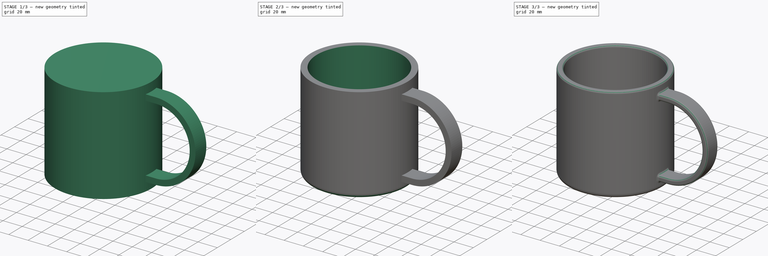
[diagram: build sequence overview — one tinted view per stage of 3, left to right]
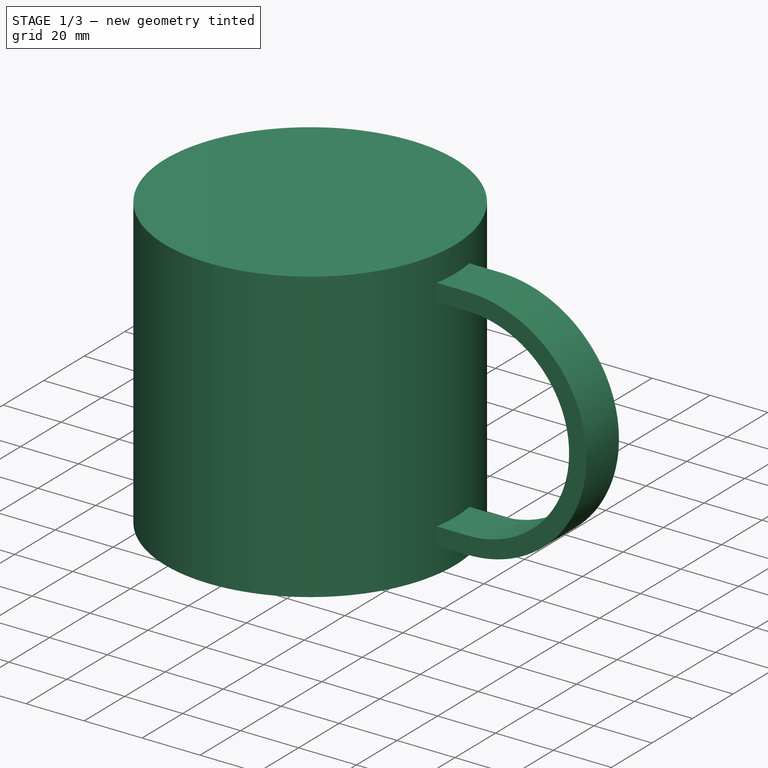
[diagram: stage 1 of 3 — iso view after this stage's code; geometry added in this stage tinted green]
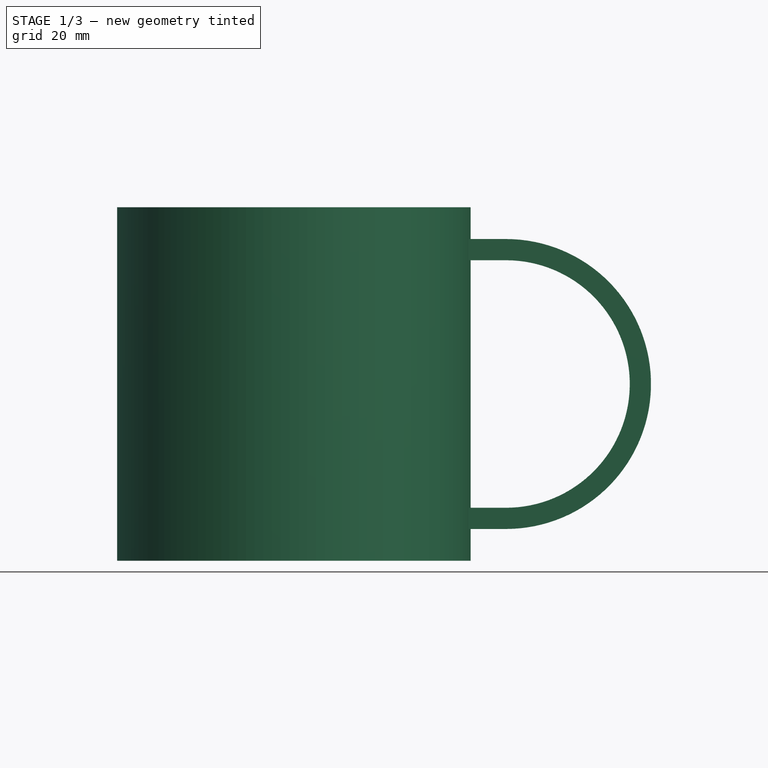
[diagram: stage 1 of 3 — front view after this stage's code; geometry added in this stage tinted green]
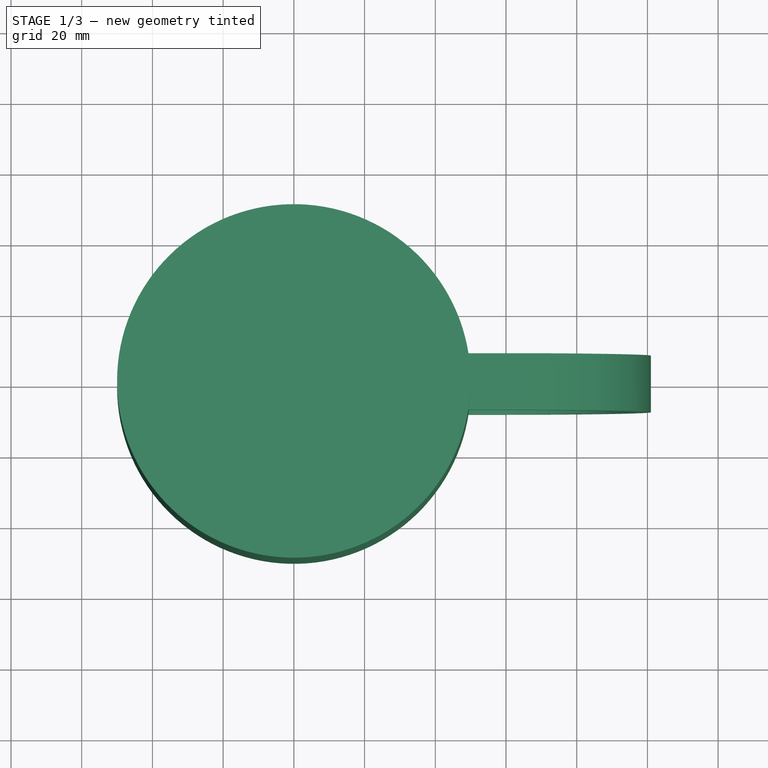
[diagram: stage 1 of 3 — top view after this stage's code; geometry added in this stage tinted green]
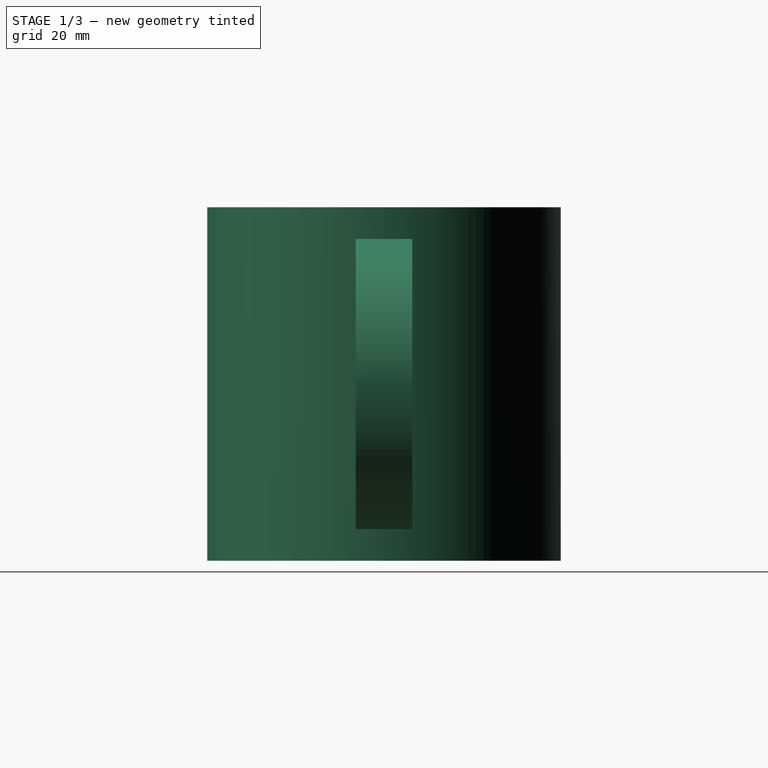
[diagram: stage 1 of 3 — right view after this stage's code; geometry added in this stage tinted green]
FCSTD DOCUMENT  (FreeCAD 2020.10.26R22739 +2702 (Git))
Label: CupSecondAttempt
License: All rights reserved
LicenseURL: http://en.wikipedia.org/wiki/All_rights_reserved
objects: Sketcher::SketchObject×3, PartDesign::Fillet×3, PartDesign::Pad×2, PartDesign::Plane×1, PartDesign::Pocket×1, PartDesign::Body×1
note: 23 computed .brp shape members not serialized (recipe doc carries the construction recipe); baked Part::Feature solids carry a one-line shape summary decoded from their .brp

FEATURE [Sketcher::SketchObject] Sketch  label="s_CupBody"
  MapMode = 5
  Support = -> [XY_Plane]
  sketch-geometry (1):
    g0: Circle CenterX=0 CenterY=0 CenterZ=0 NormalX=0 NormalY=0 NormalZ=1 AngleXU=0 Radius=50
  constraints (2):
    c: Coincident(g0,g-1)
    c: Diameter(g0) = 100  'dia'
FEATURE [PartDesign::Pad] Pad  label="CupBody"
  ClaimChildren = false
  Direction = (1,1,1)
  Length = 100
  Length2 = 100
  NewSolid = false
  Profile = -> Sketch
  Suppress = false
  Type = 0
FEATURE [Sketcher::SketchObject] Sketch001  label="s_Handle"
  MapMode = 5
  Placement = pos=(0,0,0) rot=(1,0,0;1.5708rad)
  Support = -> [XZ_Plane]
  expr: Constraints[18] = <<CupBody>>.Length * 0.5
  expr: Constraints[19] = <<s_CupBody>>.Constraints.dia * 0.6
  expr: Constraints[21] = <<CupBody>>.Length * 0.35
  expr: Constraints[22] = <<CupBody>>.Length * 0.41
  sketch-geometry (8):
    g0: LineSegment StartX=-2.5062e-12 StartY=91 StartZ=0 EndX=60 EndY=91 EndZ=0
    g1: ArcOfCircle CenterX=60 CenterY=50 CenterZ=0 NormalX=0 NormalY=0 NormalZ=1 AngleXU=0 Radius=41 StartAngle=4.71239 EndAngle=7.85398
    g2: LineSegment StartX=60 StartY=9 StartZ=0 EndX=1.02368e-10 EndY=9 EndZ=0
    g3: LineSegment StartX=1.02366e-10 StartY=9 StartZ=0 EndX=1.02366e-10 EndY=15 EndZ=0
    g4: LineSegment StartX=1.02366e-10 StartY=15 StartZ=0 EndX=60 EndY=15 EndZ=0
    g5: ArcOfCircle CenterX=60 CenterY=50 CenterZ=0 NormalX=0 NormalY=0 NormalZ=1 AngleXU=0 Radius=35 StartAngle=4.71239 EndAngle=7.85398
    g6: LineSegment StartX=60 StartY=85 StartZ=0 EndX=-2.5082e-12 EndY=85 EndZ=0
    g7: LineSegment StartX=-2.5062e-12 StartY=85 StartZ=0 EndX=-2.5062e-12 EndY=91 EndZ=0
  constraints (23):
    c: Horizontal(g0)
    c: Tangent(g0,g1) = 1.5708
    c: Tangent(g1,g2) = 1.5708
    c: Coincident(g2,g3)
    c: Vertical(g3)
    c: Coincident(g3,g4)
    c: Horizontal(g4)
    c: Tangent(g4,g5) = -1.5708
    c: Tangent(g5,g6) = -1.5708
    c: Coincident(g6,g7)
    c: Coincident(g7,g0)
    c: Vertical(g7)
    c: Horizontal(g2)
    c: Equal(g7,g3)
    c: Equal(g2,g4)
    c: Equal(g6,g0)
    c: Equal(g4,g6)
    c: Equal(g7,g3)
    c: DistanceY(g1) = 50
    c: DistanceX(g1) = 60
    c: PointOnObject(g6,g-2)
    c: Radius(g5) = 35
    c: Radius(g1) = 41
FEATURE [PartDesign::Pad] Pad001  label="Handle"
  BaseFeature = -> Pad
  ClaimChildren = false
  Direction = (1,1,1)
  Length = 16
  Length2 = 100
  Midplane = true
  NewSolid = false
  Profile = -> Sketch001
  Suppress = false
  Type = 0
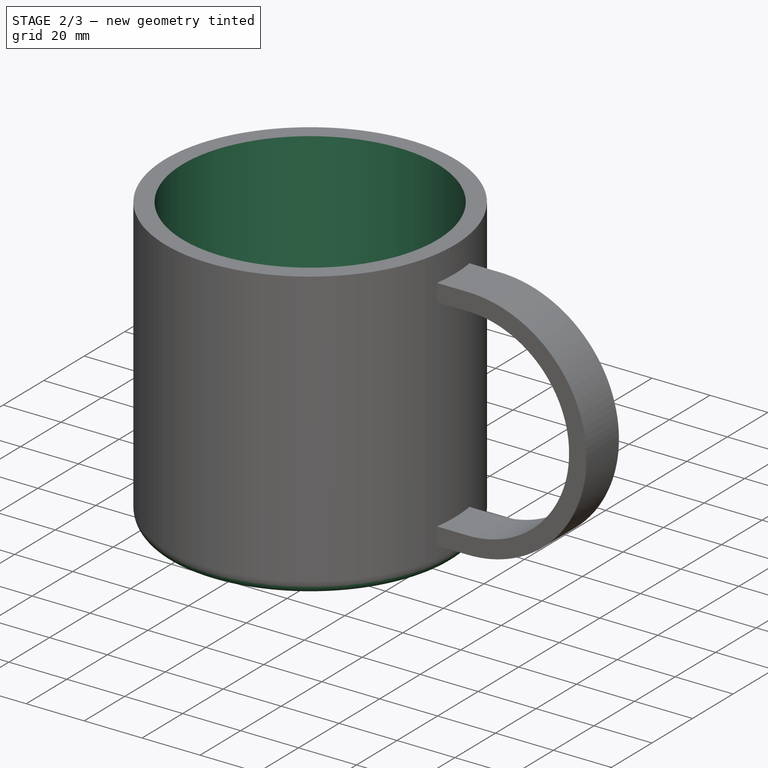
[diagram: stage 2 of 3 — iso view after this stage's code; geometry added in this stage tinted green]
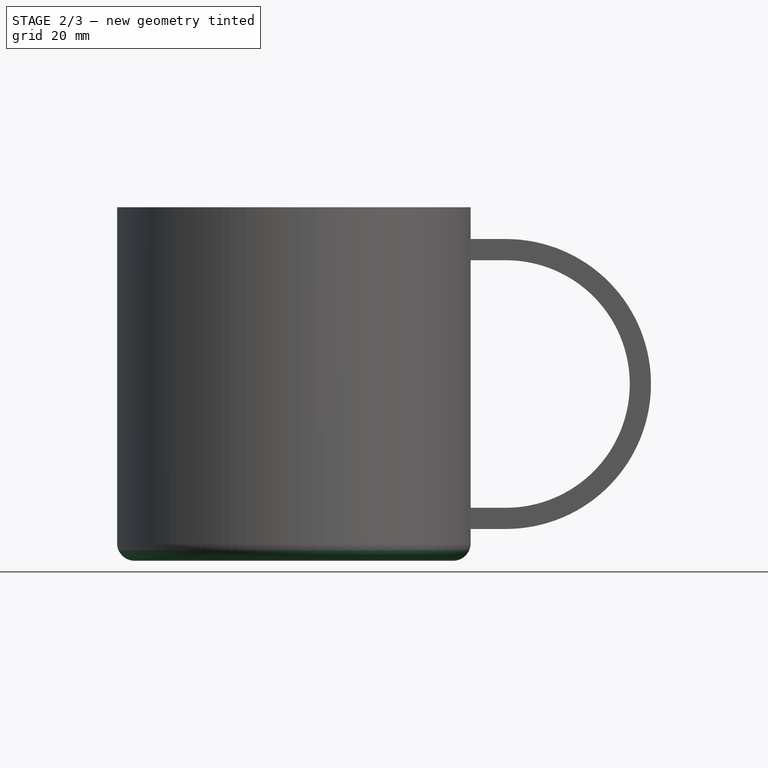
[diagram: stage 2 of 3 — front view after this stage's code; geometry added in this stage tinted green]
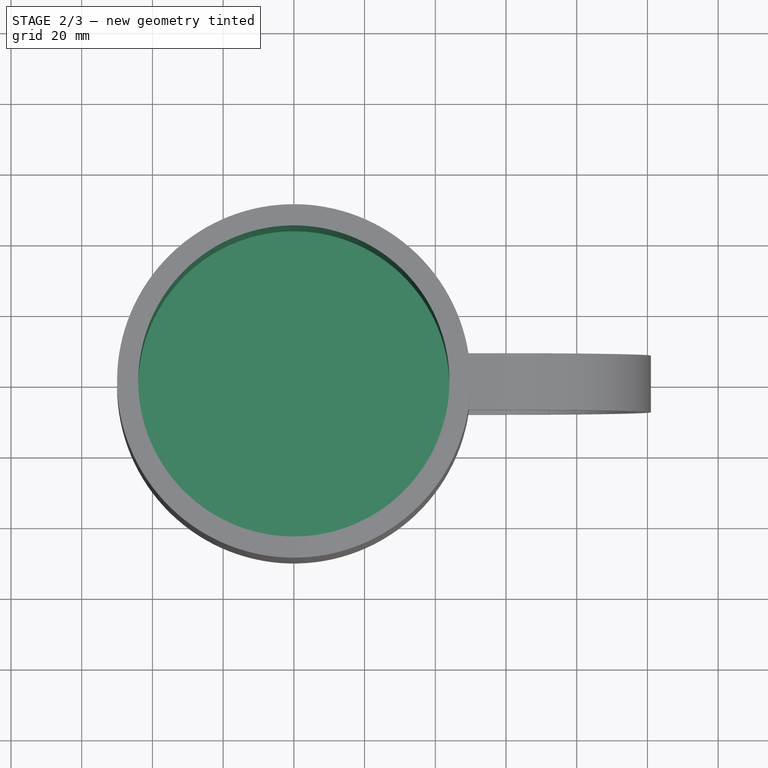
[diagram: stage 2 of 3 — top view after this stage's code; geometry added in this stage tinted green]
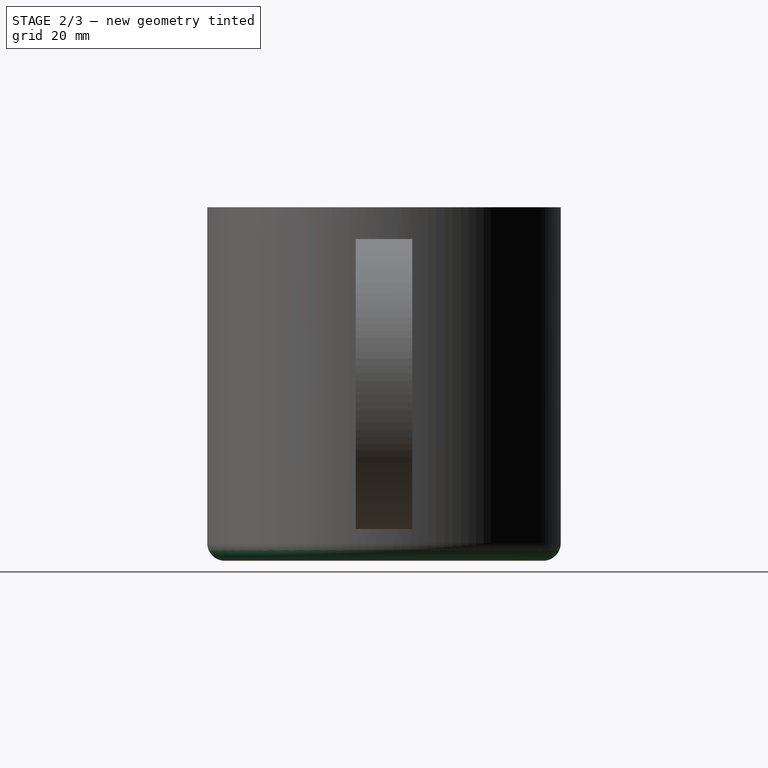
[diagram: stage 2 of 3 — right view after this stage's code; geometry added in this stage tinted green]
FEATURE [PartDesign::Plane] DatumPlane
  AttachmentOffset = pos=(0,0,4) rot=(0,0,1;0rad)
  Length = 151
  MapMode = 2
  Placement = pos=(0,0,4) rot=(0,0,1;0rad)
  ResizeMode = 0
  Support = -> [XY_Plane]
  Width = 100
FEATURE [Sketcher::SketchObject] Sketch002  label="s_Cutout"
  MapMode = 5
  Placement = pos=(0,0,4) rot=(0,0,1;0rad)
  Support = -> [DatumPlane]
  expr: Constraints[1] = <<s_CupBody>>.Constraints.dia - 6 * 2
  sketch-geometry (1):
    g0: Circle CenterX=0 CenterY=0 CenterZ=0 NormalX=0 NormalY=0 NormalZ=1 AngleXU=0 Radius=44
  constraints (2):
    c: Coincident(g0,g-1)
    c: Diameter(g0) = 88
FEATURE [PartDesign::Pocket] Pocket  label="Cutout"
  BaseFeature = -> Pad001
  ClaimChildren = false
  Length = 5
  Length2 = 100
  NewSolid = false
  Profile = -> Sketch002
  Reversed = true
  Suppress = false
  Type = 1
FEATURE [PartDesign::Fillet] Fillet  label="f_Bottom"
  Base = -> Pocket [Edge1]
  BaseFeature = -> Pocket
  NewSolid = false
  Radius = 5
  SupportTransform = false
  Suppress = false
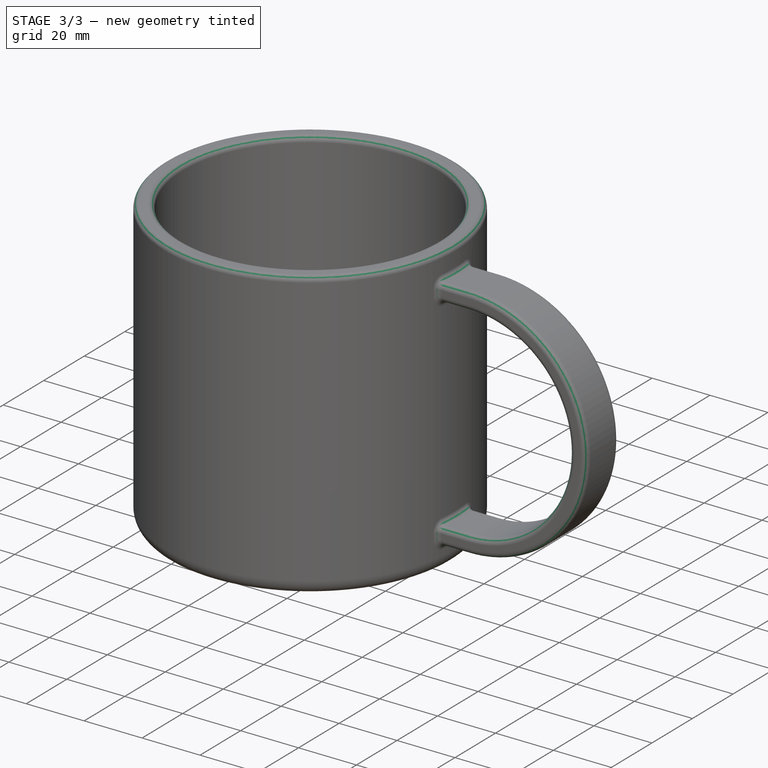
[diagram: stage 3 of 3 — iso view after this stage's code; geometry added in this stage tinted green]
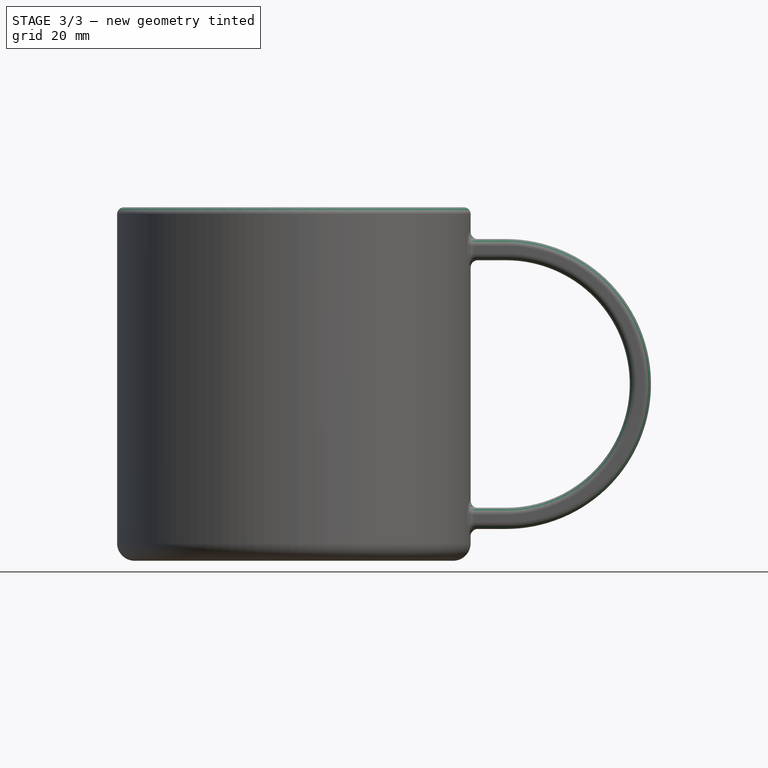
[diagram: stage 3 of 3 — front view after this stage's code; geometry added in this stage tinted green]
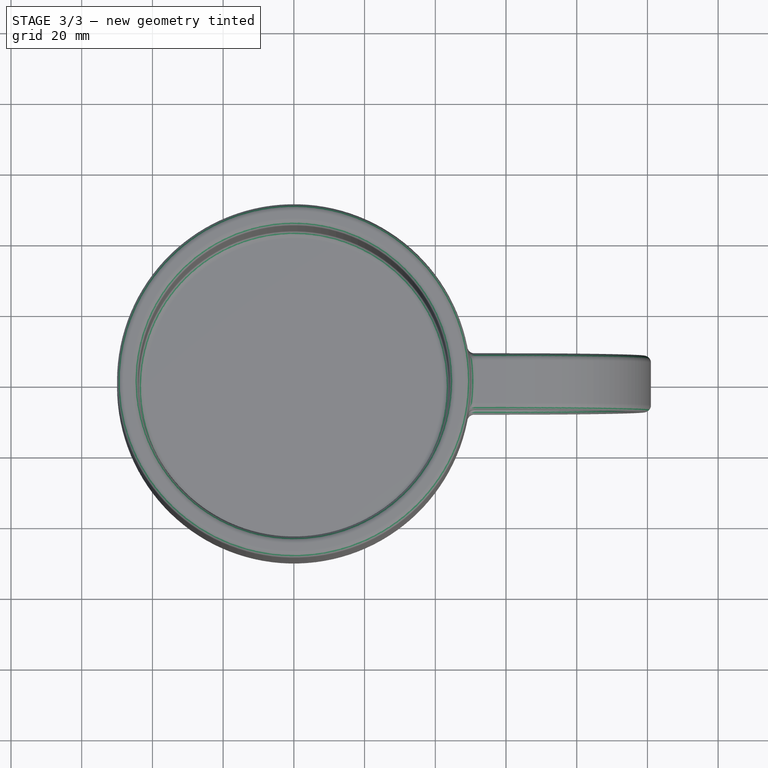
[diagram: stage 3 of 3 — top view after this stage's code; geometry added in this stage tinted green]
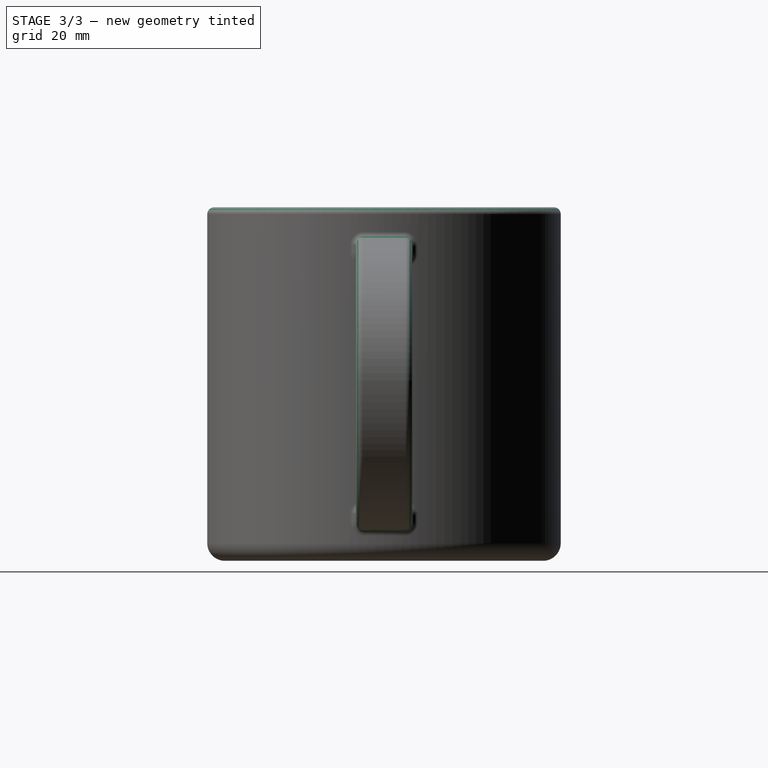
[diagram: stage 3 of 3 — right view after this stage's code; geometry added in this stage tinted green]
FEATURE [PartDesign::Fillet] Fillet001  label="f_CupTopInside"
  Base = -> Fillet [Edge37,Edge17,Edge36]
  BaseFeature = -> Fillet
  NewSolid = false
  Radius = 2
  SupportTransform = false
  Suppress = false
FEATURE [PartDesign::Fillet] Fillet002  label="f_Handle"
  Base = -> Fillet001 [Edge3,Edge7,Edge4,Edge6,Edge24,Edge30,Edge33,Edge27,Edge10,Edge11,Edge13,Edge14]
  BaseFeature = -> Fillet001
  NewSolid = false
  Radius = 2
  SupportTransform = false
  Suppress = false
FEATURE [PartDesign::Body] Body
  ExportMode = 0
  Group = -> [Sketch,Pad,Sketch001,Pad001,DatumPlane,Sketch002,Pocket,Fillet,Fillet001,Fillet002]
  Origin = -> Origin
  Tip = -> Fillet002
  _ExportChildren = -> [Pad,Pad001,DatumPlane,Pocket,Fillet,Fillet001,Fillet002]
  _GroupVersion = 1
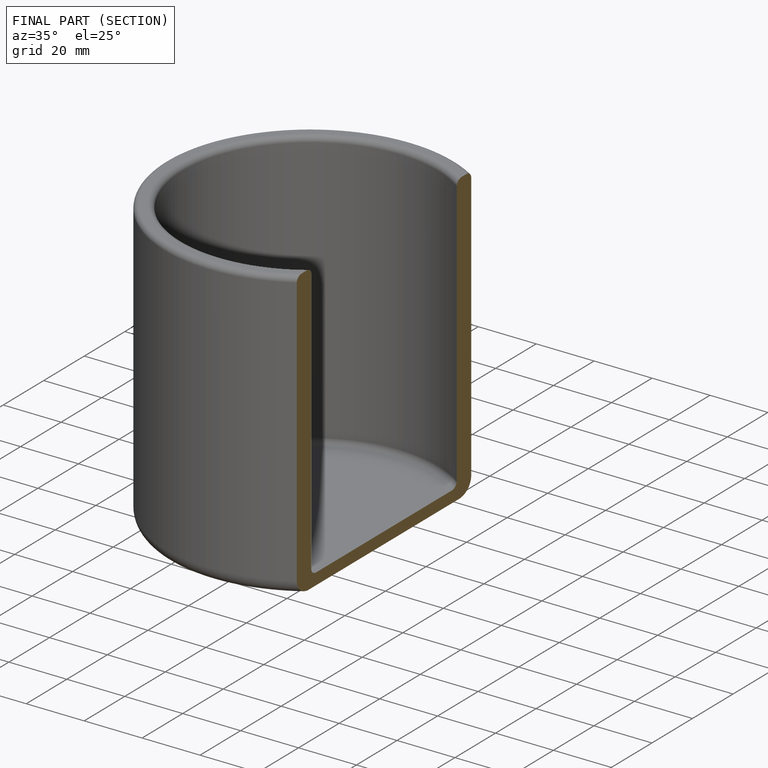
[diagram: finished part — half-section view (interior)]
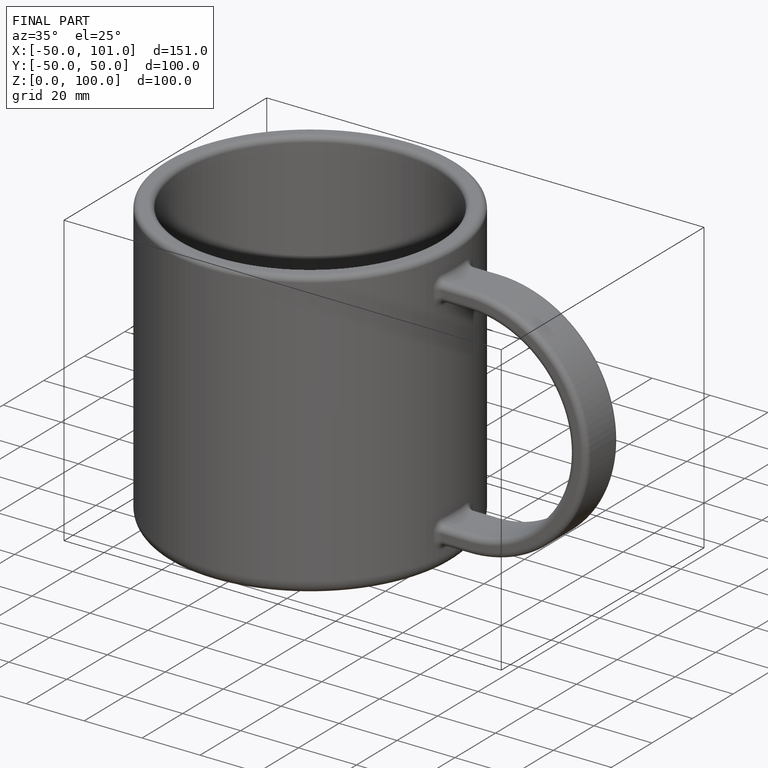
[diagram: finished part — iso view with bounding-box wireframe]
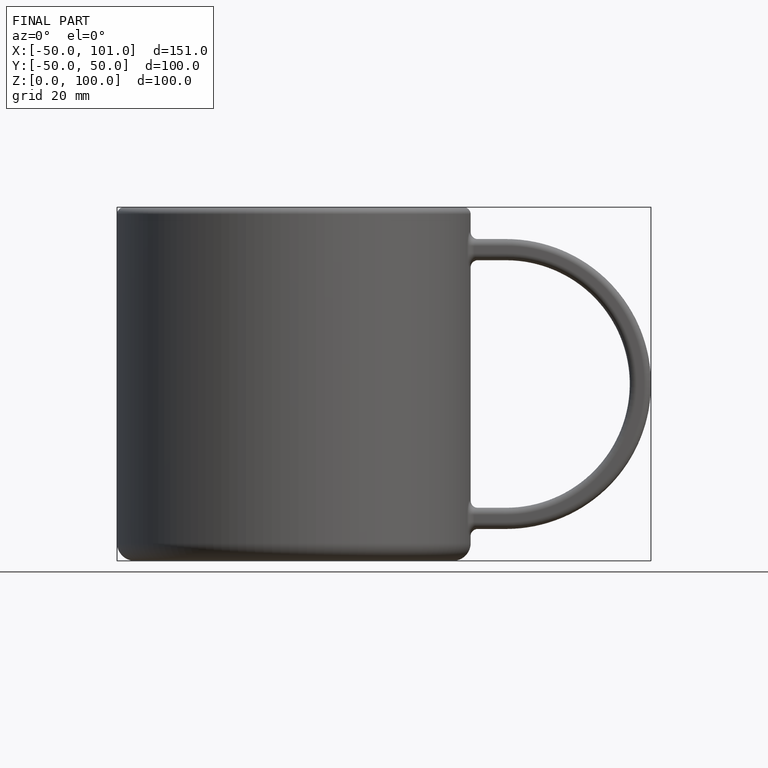
[diagram: finished part — front view with bounding-box wireframe]
